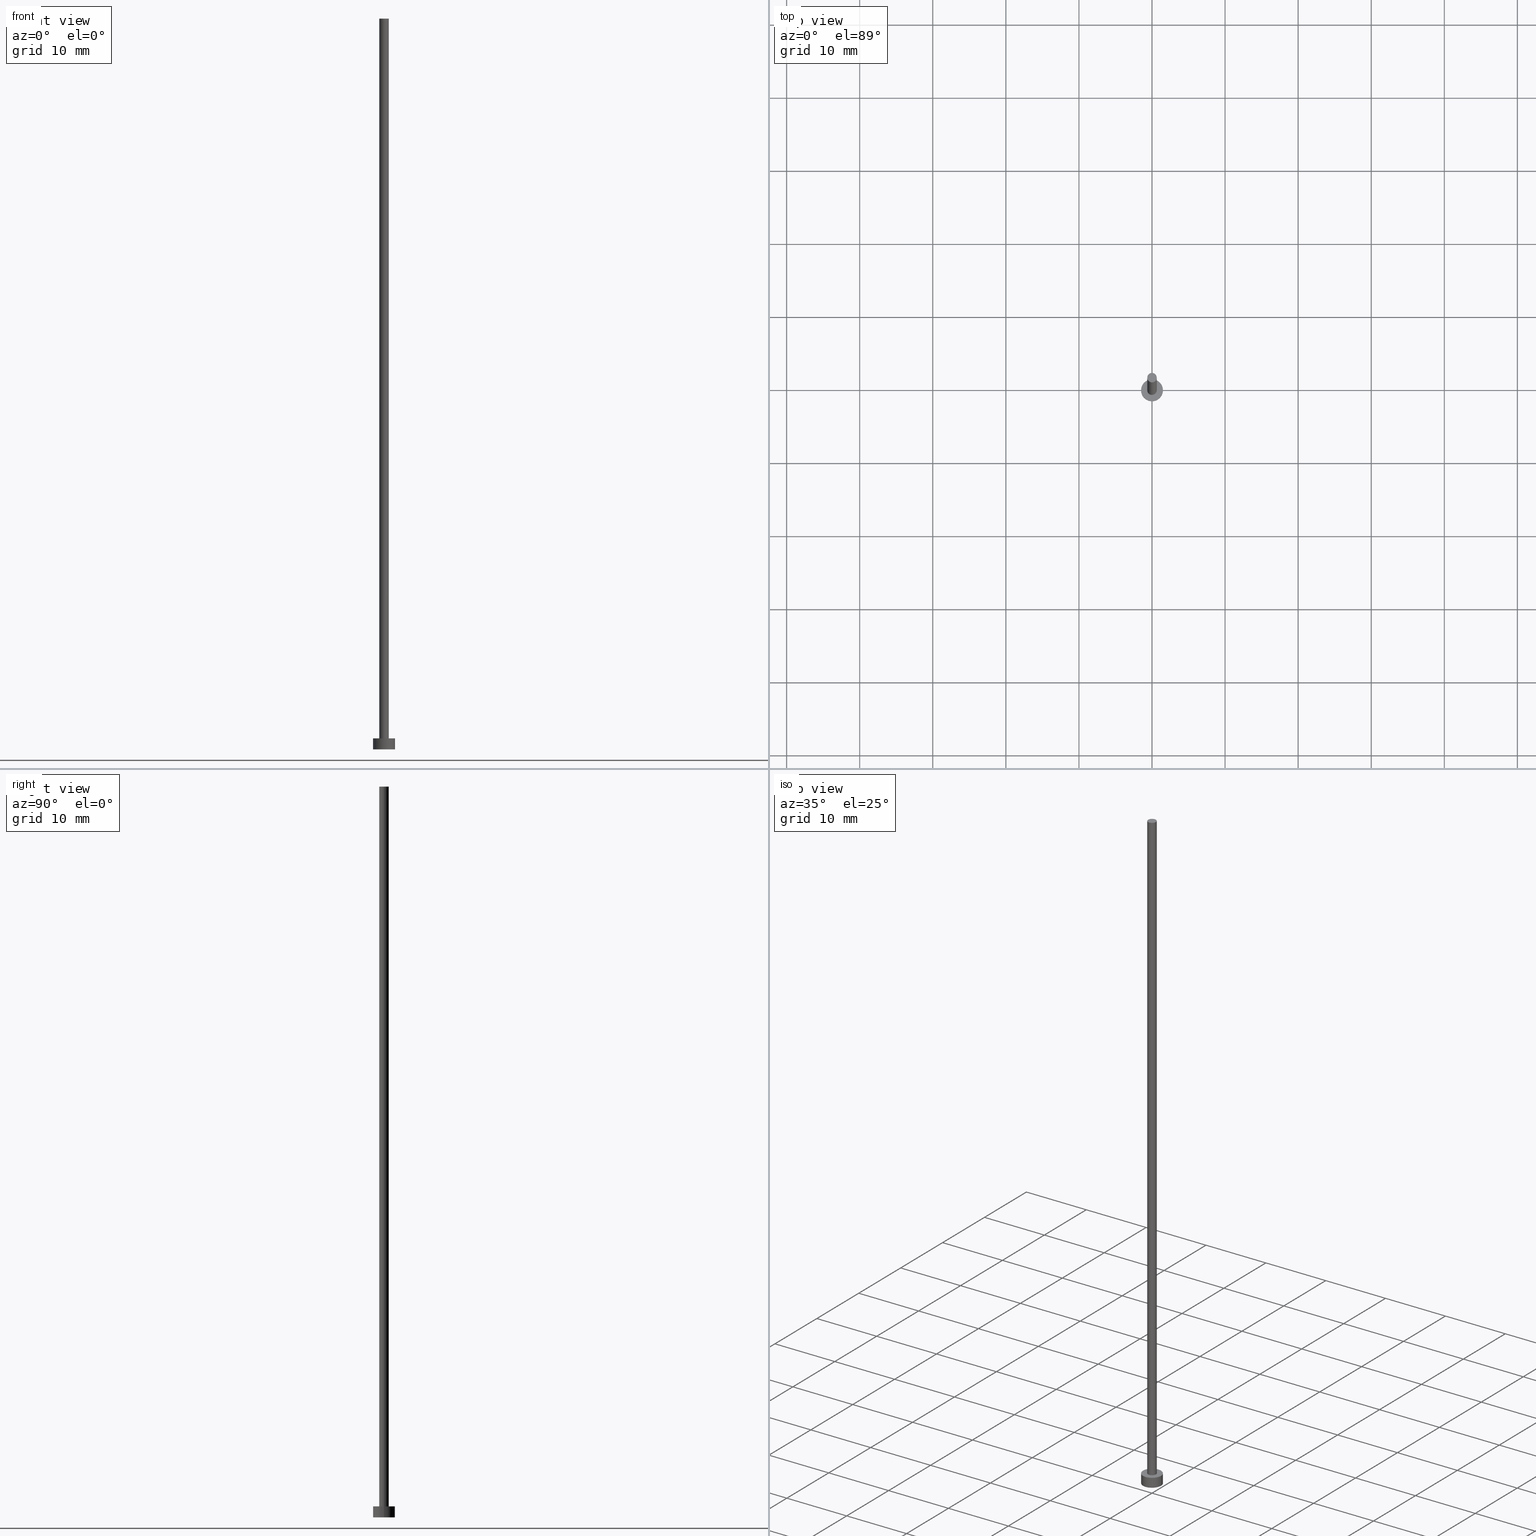
[diagram: canonical four-view strip — front | top / right | iso, engineering-drawing reading convention]
A machine part, canonical four-view strip (front | top / right | iso — engineering-drawing reading convention). The complete STEP part file that produces these views, byte-faithful:
ISO-10303-21;
HEADER;
FILE_DESCRIPTION (( 'STEP AP203' ),
    '1' );
FILE_NAME ('6736.STEP',
    '2023-02-13T17:26:36',
    ( '' ),
    ( '' ),
    'SwSTEP 2.0',
    'SolidWorks 2019',
    '' );
FILE_SCHEMA (( 'CONFIG_CONTROL_DESIGN' ));
ENDSEC;

DATA;
#1 = ORIENTED_EDGE ( 'NONE', *, *, #129, .T. ) ;
#2 = APPROVAL_ROLE ( '' ) ;
#3 = ORIENTED_EDGE ( 'NONE', *, *, #210, .T. ) ;
#4 = AXIS2_PLACEMENT_3D ( 'NONE', #92, #134, #136 ) ;
#5 = CC_DESIGN_PERSON_AND_ORGANIZATION_ASSIGNMENT ( #131, #34, ( #119 ) ) ;
#6 = CARTESIAN_POINT ( 'NONE',  ( 0.000000000000000000, 0.000000000000000000, 0.000000000000000000 ) ) ;
#7 = AXIS2_PLACEMENT_3D ( 'NONE', #14, #31, #175 ) ;
#8 = LOCAL_TIME ( 18, 26, 36.00000000000000000, #39 ) ;
#9 = CARTESIAN_POINT ( 'NONE',  ( 0.000000000000000000, 0.000000000000000000, 1.500000000000000000 ) ) ;
#10 = DIRECTION ( 'NONE',  ( 0.000000000000000000, 0.000000000000000000, 1.000000000000000000 ) ) ;
#11 = ORIENTED_EDGE ( 'NONE', *, *, #226, .T. ) ;
#12 = ORIENTED_EDGE ( 'NONE', *, *, #22, .T. ) ;
#13 = PRODUCT_RELATED_PRODUCT_CATEGORY ( 'detail', '', ( #119 ) ) ;
#14 = CARTESIAN_POINT ( 'NONE',  ( 0.000000000000000000, 0.000000000000000000, 100.0000000000000000 ) ) ;
#15 = DIRECTION ( 'NONE',  ( 0.000000000000000000, 0.000000000000000000, 1.000000000000000000 ) ) ;
#16 = CARTESIAN_POINT ( 'NONE',  ( -1.500000000000000222, 0.000000000000000000, 1.500000000000000000 ) ) ;
#17 = CYLINDRICAL_SURFACE ( 'NONE', #7, 0.6500000000000000222 ) ;
#18 = AXIS2_PLACEMENT_3D ( 'NONE', #9, #170, #146 ) ;
#19 = SHAPE_DEFINITION_REPRESENTATION ( #71, #50 ) ;
#20 = ORIENTED_EDGE ( 'NONE', *, *, #246, .F. ) ;
#21 = PERSON_AND_ORGANIZATION_ROLE ( 'classification_officer' ) ;
#22 = EDGE_CURVE ( 'NONE', #223, #99, #240, .T. ) ;
#23 = EDGE_LOOP ( 'NONE', ( #66, #89 ) ) ;
#24 = DIRECTION ( 'NONE',  ( -0.000000000000000000, -0.000000000000000000, -1.000000000000000000 ) ) ;
#25 = LOCAL_TIME ( 18, 26, 36.00000000000000000, #237 ) ;
#26 = FACE_BOUND ( 'NONE', #117, .T. ) ;
#27 = ADVANCED_FACE ( 'NONE', ( #101 ), #125, .T. ) ;
#28 = CARTESIAN_POINT ( 'NONE',  ( 0.000000000000000000, 0.000000000000000000, 1.500000000000000000 ) ) ;
#29 = LINE ( 'NONE', #105, #165 ) ;
#30 = AXIS2_PLACEMENT_3D ( 'NONE', #176, #90, #53 ) ;
#31 = DIRECTION ( 'NONE',  ( -0.000000000000000000, -0.000000000000000000, -1.000000000000000000 ) ) ;
#32 = ADVANCED_FACE ( 'NONE', ( #148 ), #201, .F. ) ;
#33 = DIRECTION ( 'NONE',  ( 1.000000000000000000, 0.000000000000000000, 0.000000000000000000 ) ) ;
#34 = PERSON_AND_ORGANIZATION_ROLE ( 'design_owner' ) ;
#35 = AXIS2_PLACEMENT_3D ( 'NONE', #107, #133, #33 ) ;
#36 = LINE ( 'NONE', #112, #187 ) ;
#37 = CIRCLE ( 'NONE', #144, 0.6500000000000000222 ) ;
#38 = DIRECTION ( 'NONE',  ( 1.000000000000000000, 0.000000000000000000, 0.000000000000000000 ) ) ;
#39 = COORDINATED_UNIVERSAL_TIME_OFFSET ( 1, 0, .AHEAD. ) ;
#40 = VERTEX_POINT ( 'NONE', #221 ) ;
#41 = PERSON_AND_ORGANIZATION_ROLE ( 'creator' ) ;
#42 = CARTESIAN_POINT ( 'NONE',  ( 0.6500000000000000222, 7.960204194457795477E-17, 100.0000000000000000 ) ) ;
#43 = DIRECTION ( 'NONE',  ( -0.000000000000000000, -0.000000000000000000, -1.000000000000000000 ) ) ;
#44 = ORIENTED_EDGE ( 'NONE', *, *, #210, .F. ) ;
#45 = AXIS2_PLACEMENT_3D ( 'NONE', #28, #104, #91 ) ;
#46 = CC_DESIGN_APPROVAL ( #219, ( #132 ) ) ;
#47 = CYLINDRICAL_SURFACE ( 'NONE', #18, 1.500000000000000222 ) ;
#48 = ORIENTED_EDGE ( 'NONE', *, *, #243, .T. ) ;
#49 = CC_DESIGN_APPROVAL ( #232, ( #127 ) ) ;
#50 = ADVANCED_BREP_SHAPE_REPRESENTATION ( '6736', ( #68, #30 ), #231 ) ;
#51 = DIRECTION ( 'NONE',  ( 1.000000000000000000, 0.000000000000000000, 0.000000000000000000 ) ) ;
#52 = UNCERTAINTY_MEASURE_WITH_UNIT (LENGTH_MEASURE( 1.000000000000000082E-05 ), #234, 'distance_accuracy_value', 'NONE');
#53 = DIRECTION ( 'NONE',  ( 1.000000000000000000, 0.000000000000000000, 0.000000000000000000 ) ) ;
#54 = CARTESIAN_POINT ( 'NONE',  ( 1.500000000000000222, 1.836970198721030181E-16, 0.000000000000000000 ) ) ;
#55 = CALENDAR_DATE ( 2023, 13, 2 ) ;
#56 = PERSON_AND_ORGANIZATION ( #251, #116 ) ;
#57 = VERTEX_POINT ( 'NONE', #42 ) ;
#58 = CC_DESIGN_SECURITY_CLASSIFICATION ( #127, ( #132 ) ) ;
#59 = DATE_TIME_ROLE ( 'classification_date' ) ;
#60 = PERSON_AND_ORGANIZATION ( #251, #116 ) ;
#61 = ORIENTED_EDGE ( 'NONE', *, *, #252, .F. ) ;
#62 = CARTESIAN_POINT ( 'NONE',  ( 0.000000000000000000, 0.000000000000000000, 1.500000000000000000 ) ) ;
#63 = DIRECTION ( 'NONE',  ( -1.000000000000000000, 0.000000000000000000, 0.000000000000000000 ) ) ;
#64 = DIRECTION ( 'NONE',  ( 1.000000000000000000, 0.000000000000000000, -0.000000000000000000 ) ) ;
#65 = AXIS2_PLACEMENT_3D ( 'NONE', #6, #227, #143 ) ;
#66 = ORIENTED_EDGE ( 'NONE', *, *, #109, .T. ) ;
#67 = DIRECTION ( 'NONE',  ( 0.000000000000000000, 0.000000000000000000, 1.000000000000000000 ) ) ;
#68 = MANIFOLD_SOLID_BREP ( 'P�idat vysunut�m3', #82 ) ;
#69 = CIRCLE ( 'NONE', #35, 0.6500000000000000222 ) ;
#70 = PERSON_AND_ORGANIZATION ( #251, #116 ) ;
#71 = PRODUCT_DEFINITION_SHAPE ( 'NONE', 'NONE',  #87 ) ;
#72 = FACE_OUTER_BOUND ( 'NONE', #248, .T. ) ;
#73 = PERSON_AND_ORGANIZATION ( #251, #116 ) ;
#74 = COORDINATED_UNIVERSAL_TIME_OFFSET ( 1, 0, .AHEAD. ) ;
#75 = DATE_AND_TIME ( #218, #182 ) ;
#76 = VERTEX_POINT ( 'NONE', #85 ) ;
#77 = CIRCLE ( 'NONE', #154, 0.6500000000000000222 ) ;
#78 = EDGE_LOOP ( 'NONE', ( #140, #245, #186, #197 ) ) ;
#79 = DATE_TIME_ROLE ( 'creation_date' ) ;
#80 = ORIENTED_EDGE ( 'NONE', *, *, #109, .F. ) ;
#81 = FACE_OUTER_BOUND ( 'NONE', #78, .T. ) ;
#82 = CLOSED_SHELL ( 'NONE', ( #27, #83, #135, #142, #32, #163, #202 ) ) ;
#83 = ADVANCED_FACE ( 'NONE', ( #81 ), #173, .T. ) ;
#84 = ORIENTED_EDGE ( 'NONE', *, *, #185, .T. ) ;
#85 = CARTESIAN_POINT ( 'NONE',  ( 1.500000000000000222, 1.836970198721030181E-16, 1.500000000000000000 ) ) ;
#86 = DIRECTION ( 'NONE',  ( 1.000000000000000000, 0.000000000000000000, 0.000000000000000000 ) ) ;
#87 = PRODUCT_DEFINITION ( 'NEZN�M�', '', #132, #110 ) ;
#88 = AXIS2_PLACEMENT_3D ( 'NONE', #169, #123, #63 ) ;
#89 = ORIENTED_EDGE ( 'NONE', *, *, #152, .T. ) ;
#90 = DIRECTION ( 'NONE',  ( 0.000000000000000000, 0.000000000000000000, 1.000000000000000000 ) ) ;
#91 = DIRECTION ( 'NONE',  ( 1.000000000000000000, 0.000000000000000000, 0.000000000000000000 ) ) ;
#92 = CARTESIAN_POINT ( 'NONE',  ( 0.000000000000000000, 0.000000000000000000, 100.0000000000000000 ) ) ;
#93 = PERSON_AND_ORGANIZATION ( #251, #116 ) ;
#94 = APPROVAL_ROLE ( '' ) ;
#95 = ORIENTED_EDGE ( 'NONE', *, *, #100, .F. ) ;
#96 = COORDINATED_UNIVERSAL_TIME_OFFSET ( 1, 0, .AHEAD. ) ;
#97 = AXIS2_PLACEMENT_3D ( 'NONE', #108, #229, #38 ) ;
#98 = ORIENTED_EDGE ( 'NONE', *, *, #185, .F. ) ;
#99 = VERTEX_POINT ( 'NONE', #225 ) ;
#100 = EDGE_CURVE ( 'NONE', #76, #222, #247, .T. ) ;
#101 = FACE_OUTER_BOUND ( 'NONE', #216, .T. ) ;
#102 = VECTOR ( 'NONE', #151, 1000.000000000000000 ) ;
#103 = FACE_OUTER_BOUND ( 'NONE', #23, .T. ) ;
#104 = DIRECTION ( 'NONE',  ( 0.000000000000000000, 0.000000000000000000, 1.000000000000000000 ) ) ;
#105 = CARTESIAN_POINT ( 'NONE',  ( 0.6500000000000000222, 7.960204194457795477E-17, 100.0000000000000000 ) ) ;
#106 = APPROVAL_PERSON_ORGANIZATION ( #70, #122, #160 ) ;
#107 = CARTESIAN_POINT ( 'NONE',  ( 0.000000000000000000, 0.000000000000000000, 1.500000000000000000 ) ) ;
#108 = CARTESIAN_POINT ( 'NONE',  ( 0.000000000000000000, 0.000000000000000000, 0.000000000000000000 ) ) ;
#109 = EDGE_CURVE ( 'NONE', #164, #76, #181, .T. ) ;
#110 = DESIGN_CONTEXT ( 'detailed design', #147, 'design' ) ;
#111 = AXIS2_PLACEMENT_3D ( 'NONE', #172, #205, #206 ) ;
#112 = CARTESIAN_POINT ( 'NONE',  ( -0.6500000000000000222, 0.000000000000000000, 100.0000000000000000 ) ) ;
#113 = DIRECTION ( 'NONE',  ( 1.000000000000000000, 0.000000000000000000, 0.000000000000000000 ) ) ;
#114 = PERSON_AND_ORGANIZATION_ROLE ( 'design_supplier' ) ;
#115 = DATE_AND_TIME ( #121, #8 ) ;
#116 = ORGANIZATION ( 'NEUR�EN�', 'NEUR�EN�', '' ) ;
#117 = EDGE_LOOP ( 'NONE', ( #190, #44 ) ) ;
#118 = CC_DESIGN_PERSON_AND_ORGANIZATION_ASSIGNMENT ( #73, #21, ( #127 ) ) ;
#119 = PRODUCT ( '6736', '6736', '', ( #228 ) ) ;
#120 = VERTEX_POINT ( 'NONE', #124 ) ;
#121 = CALENDAR_DATE ( 2023, 13, 2 ) ;
#122 = APPROVAL ( #233, 'NEUR�EN�' ) ;
#123 = DIRECTION ( 'NONE',  ( -0.000000000000000000, -0.000000000000000000, -1.000000000000000000 ) ) ;
#124 = CARTESIAN_POINT ( 'NONE',  ( -1.500000000000000222, 0.000000000000000000, 0.000000000000000000 ) ) ;
#125 = CYLINDRICAL_SURFACE ( 'NONE', #111, 0.6500000000000000222 ) ;
#126 = AXIS2_PLACEMENT_3D ( 'NONE', #200, #128, #86 ) ;
#127 = SECURITY_CLASSIFICATION ( '', '', #220 ) ;
#128 = DIRECTION ( 'NONE',  ( 0.000000000000000000, 0.000000000000000000, 1.000000000000000000 ) ) ;
#129 = EDGE_CURVE ( 'NONE', #57, #99, #29, .T. ) ;
#130 = DIRECTION ( 'NONE',  ( 0.000000000000000000, 0.000000000000000000, 1.000000000000000000 ) ) ;
#131 = PERSON_AND_ORGANIZATION ( #251, #116 ) ;
#132 = PRODUCT_DEFINITION_FORMATION_WITH_SPECIFIED_SOURCE ( 'LIBOVOLN�', '', #119, .NOT_KNOWN. ) ;
#133 = DIRECTION ( 'NONE',  ( 0.000000000000000000, 0.000000000000000000, 1.000000000000000000 ) ) ;
#134 = DIRECTION ( 'NONE',  ( 0.000000000000000000, 0.000000000000000000, 1.000000000000000000 ) ) ;
#135 = ADVANCED_FACE ( 'NONE', ( #188 ), #47, .T. ) ;
#136 = DIRECTION ( 'NONE',  ( 1.000000000000000000, 0.000000000000000000, -0.000000000000000000 ) ) ;
#137 = APPROVAL_STATUS ( 'not_yet_approved' ) ;
#138 = ORIENTED_EDGE ( 'NONE', *, *, #171, .F. ) ;
#139 = PERSON_AND_ORGANIZATION_ROLE ( 'creator' ) ;
#140 = ORIENTED_EDGE ( 'NONE', *, *, #152, .F. ) ;
#141 = PERSON_AND_ORGANIZATION ( #251, #116 ) ;
#142 = ADVANCED_FACE ( 'NONE', ( #26, #103 ), #189, .T. ) ;
#143 = DIRECTION ( 'NONE',  ( 1.000000000000000000, 0.000000000000000000, -0.000000000000000000 ) ) ;
#144 = AXIS2_PLACEMENT_3D ( 'NONE', #158, #15, #113 ) ;
#145 = DIRECTION ( 'NONE',  ( 1.000000000000000000, 0.000000000000000000, 0.000000000000000000 ) ) ;
#146 = DIRECTION ( 'NONE',  ( -1.000000000000000000, 0.000000000000000000, 0.000000000000000000 ) ) ;
#147 = APPLICATION_CONTEXT ( 'configuration controlled 3d designs of mechanical parts and assemblies' ) ;
#148 = FACE_OUTER_BOUND ( 'NONE', #191, .T. ) ;
#149 = CC_DESIGN_PERSON_AND_ORGANIZATION_ASSIGNMENT ( #60, #41, ( #87 ) ) ;
#150 = ORIENTED_EDGE ( 'NONE', *, *, #243, .F. ) ;
#151 = DIRECTION ( 'NONE',  ( -0.000000000000000000, -0.000000000000000000, -1.000000000000000000 ) ) ;
#152 = EDGE_CURVE ( 'NONE', #76, #164, #230, .T. ) ;
#153 = DIRECTION ( 'NONE',  ( 0.000000000000000000, 0.000000000000000000, 1.000000000000000000 ) ) ;
#154 = AXIS2_PLACEMENT_3D ( 'NONE', #157, #67, #51 ) ;
#155 = LOCAL_TIME ( 18, 26, 36.00000000000000000, #74 ) ;
#156 = PLANE ( 'NONE',  #4 ) ;
#157 = CARTESIAN_POINT ( 'NONE',  ( 0.000000000000000000, 0.000000000000000000, 100.0000000000000000 ) ) ;
#158 = CARTESIAN_POINT ( 'NONE',  ( 0.000000000000000000, 0.000000000000000000, 100.0000000000000000 ) ) ;
#159 = CALENDAR_DATE ( 2023, 13, 2 ) ;
#160 = APPROVAL_ROLE ( '' ) ;
#161 = ORIENTED_EDGE ( 'NONE', *, *, #252, .T. ) ;
#162 = DATE_AND_TIME ( #159, #166 ) ;
#163 = ADVANCED_FACE ( 'NONE', ( #72 ), #17, .T. ) ;
#164 = VERTEX_POINT ( 'NONE', #254 ) ;
#165 = VECTOR ( 'NONE', #24, 1000.000000000000000 ) ;
#166 = LOCAL_TIME ( 18, 26, 36.00000000000000000, #96 ) ;
#167 = CC_DESIGN_PERSON_AND_ORGANIZATION_ASSIGNMENT ( #56, #139, ( #132 ) ) ;
#168 = AXIS2_PLACEMENT_3D ( 'NONE', #249, #10, #64 ) ;
#169 = CARTESIAN_POINT ( 'NONE',  ( 0.000000000000000000, 0.000000000000000000, 1.500000000000000000 ) ) ;
#170 = DIRECTION ( 'NONE',  ( -0.000000000000000000, -0.000000000000000000, -1.000000000000000000 ) ) ;
#171 = EDGE_CURVE ( 'NONE', #57, #40, #77, .T. ) ;
#172 = CARTESIAN_POINT ( 'NONE',  ( 0.000000000000000000, 0.000000000000000000, 100.0000000000000000 ) ) ;
#173 = CYLINDRICAL_SURFACE ( 'NONE', #88, 1.500000000000000222 ) ;
#174 = VECTOR ( 'NONE', #43, 1000.000000000000000 ) ;
#175 = DIRECTION ( 'NONE',  ( -1.000000000000000000, 0.000000000000000000, 0.000000000000000000 ) ) ;
#176 = CARTESIAN_POINT ( 'NONE',  ( 0.000000000000000000, 0.000000000000000000, 0.000000000000000000 ) ) ;
#177 = APPROVAL_PERSON_ORGANIZATION ( #93, #232, #94 ) ;
#178 =( NAMED_UNIT ( * ) PLANE_ANGLE_UNIT ( ) SI_UNIT ( $, .RADIAN. ) );
#179 = CARTESIAN_POINT ( 'NONE',  ( 0.000000000000000000, 0.000000000000000000, 0.000000000000000000 ) ) ;
#180 = APPROVAL_DATE_TIME ( #214, #232 ) ;
#181 = CIRCLE ( 'NONE', #235, 1.500000000000000222 ) ;
#182 = LOCAL_TIME ( 18, 26, 36.00000000000000000, #255 ) ;
#183 = APPROVAL_DATE_TIME ( #75, #122 ) ;
#184 = AXIS2_PLACEMENT_3D ( 'NONE', #179, #153, #207 ) ;
#185 = EDGE_CURVE ( 'NONE', #40, #223, #36, .T. ) ;
#186 = ORIENTED_EDGE ( 'NONE', *, *, #246, .T. ) ;
#187 = VECTOR ( 'NONE', #208, 1000.000000000000000 ) ;
#188 = FACE_OUTER_BOUND ( 'NONE', #198, .T. ) ;
#189 = PLANE ( 'NONE',  #168 ) ;
#190 = ORIENTED_EDGE ( 'NONE', *, *, #22, .F. ) ;
#191 = EDGE_LOOP ( 'NONE', ( #150, #20 ) ) ;
#192 = CC_DESIGN_PERSON_AND_ORGANIZATION_ASSIGNMENT ( #199, #114, ( #132 ) ) ;
#193 = APPLICATION_PROTOCOL_DEFINITION ( 'international standard', 'config_control_design', 1994, #147 ) ;
#194 = FACE_OUTER_BOUND ( 'NONE', #217, .T. ) ;
#195 = LINE ( 'NONE', #16, #102 ) ;
#196 = CALENDAR_DATE ( 2023, 13, 2 ) ;
#197 = ORIENTED_EDGE ( 'NONE', *, *, #226, .F. ) ;
#198 = EDGE_LOOP ( 'NONE', ( #95, #80, #11, #48 ) ) ;
#199 = PERSON_AND_ORGANIZATION ( #251, #116 ) ;
#200 = CARTESIAN_POINT ( 'NONE',  ( 0.000000000000000000, 0.000000000000000000, 1.500000000000000000 ) ) ;
#201 = PLANE ( 'NONE',  #65 ) ;
#202 = ADVANCED_FACE ( 'NONE', ( #194 ), #156, .T. ) ;
#203 = APPROVAL_PERSON_ORGANIZATION ( #141, #219, #2 ) ;
#204 = ORIENTED_EDGE ( 'NONE', *, *, #129, .F. ) ;
#205 = DIRECTION ( 'NONE',  ( -0.000000000000000000, -0.000000000000000000, -1.000000000000000000 ) ) ;
#206 = DIRECTION ( 'NONE',  ( -1.000000000000000000, 0.000000000000000000, 0.000000000000000000 ) ) ;
#207 = DIRECTION ( 'NONE',  ( 1.000000000000000000, 0.000000000000000000, 0.000000000000000000 ) ) ;
#208 = DIRECTION ( 'NONE',  ( -0.000000000000000000, -0.000000000000000000, -1.000000000000000000 ) ) ;
#209 =( NAMED_UNIT ( * ) SI_UNIT ( $, .STERADIAN. ) SOLID_ANGLE_UNIT ( ) );
#210 = EDGE_CURVE ( 'NONE', #99, #223, #69, .T. ) ;
#211 = APPLICATION_CONTEXT ( 'configuration controlled 3d designs of mechanical parts and assemblies' ) ;
#212 = CIRCLE ( 'NONE', #97, 1.500000000000000222 ) ;
#213 = CARTESIAN_POINT ( 'NONE',  ( -0.6500000000000000222, 0.000000000000000000, 1.500000000000000000 ) ) ;
#214 = DATE_AND_TIME ( #196, #155 ) ;
#215 = CC_DESIGN_DATE_AND_TIME_ASSIGNMENT ( #242, #59, ( #127 ) ) ;
#216 = EDGE_LOOP ( 'NONE', ( #138, #1, #3, #98 ) ) ;
#217 = EDGE_LOOP ( 'NONE', ( #161, #239 ) ) ;
#218 = CALENDAR_DATE ( 2023, 13, 2 ) ;
#219 = APPROVAL ( #244, 'NEUR�EN�' ) ;
#220 = SECURITY_CLASSIFICATION_LEVEL ( 'unclassified' ) ;
#221 = CARTESIAN_POINT ( 'NONE',  ( -0.6500000000000000222, 0.000000000000000000, 100.0000000000000000 ) ) ;
#222 = VERTEX_POINT ( 'NONE', #54 ) ;
#223 = VERTEX_POINT ( 'NONE', #213 ) ;
#224 = CIRCLE ( 'NONE', #184, 1.500000000000000222 ) ;
#225 = CARTESIAN_POINT ( 'NONE',  ( 0.6500000000000000222, 7.960204194457795477E-17, 1.500000000000000000 ) ) ;
#226 = EDGE_CURVE ( 'NONE', #164, #120, #195, .T. ) ;
#227 = DIRECTION ( 'NONE',  ( 0.000000000000000000, 0.000000000000000000, 1.000000000000000000 ) ) ;
#228 = MECHANICAL_CONTEXT ( 'NONE', #211, 'mechanical' ) ;
#229 = DIRECTION ( 'NONE',  ( 0.000000000000000000, 0.000000000000000000, 1.000000000000000000 ) ) ;
#230 = CIRCLE ( 'NONE', #45, 1.500000000000000222 ) ;
#231 =( GEOMETRIC_REPRESENTATION_CONTEXT ( 3 ) GLOBAL_UNCERTAINTY_ASSIGNED_CONTEXT ( ( #52 ) ) GLOBAL_UNIT_ASSIGNED_CONTEXT ( ( #234, #178, #209 ) ) REPRESENTATION_CONTEXT ( 'NONE', 'WORKASPACE' ) );
#232 = APPROVAL ( #137, 'NEUR�EN�' ) ;
#233 = APPROVAL_STATUS ( 'not_yet_approved' ) ;
#234 =( LENGTH_UNIT ( ) NAMED_UNIT ( * ) SI_UNIT ( .MILLI., .METRE. ) );
#235 = AXIS2_PLACEMENT_3D ( 'NONE', #62, #130, #145 ) ;
#236 = CC_DESIGN_DATE_AND_TIME_ASSIGNMENT ( #162, #79, ( #87 ) ) ;
#237 = COORDINATED_UNIVERSAL_TIME_OFFSET ( 1, 0, .AHEAD. ) ;
#238 = APPROVAL_DATE_TIME ( #115, #219 ) ;
#239 = ORIENTED_EDGE ( 'NONE', *, *, #171, .T. ) ;
#240 = CIRCLE ( 'NONE', #126, 0.6500000000000000222 ) ;
#241 = CC_DESIGN_APPROVAL ( #122, ( #87 ) ) ;
#242 = DATE_AND_TIME ( #55, #25 ) ;
#243 = EDGE_CURVE ( 'NONE', #120, #222, #224, .T. ) ;
#244 = APPROVAL_STATUS ( 'not_yet_approved' ) ;
#245 = ORIENTED_EDGE ( 'NONE', *, *, #100, .T. ) ;
#246 = EDGE_CURVE ( 'NONE', #222, #120, #212, .T. ) ;
#247 = LINE ( 'NONE', #250, #174 ) ;
#248 = EDGE_LOOP ( 'NONE', ( #204, #61, #84, #12 ) ) ;
#249 = CARTESIAN_POINT ( 'NONE',  ( 0.000000000000000000, 0.000000000000000000, 1.500000000000000000 ) ) ;
#250 = CARTESIAN_POINT ( 'NONE',  ( 1.500000000000000222, 1.836970198721030181E-16, 1.500000000000000000 ) ) ;
#251 = PERSON ( 'NEUR�EN�', 'NEUR�EN�', 'NEUR�EN�', ('NEUR�EN�'), ('NEUR�EN�'), ('NEUR�EN�') ) ;
#252 = EDGE_CURVE ( 'NONE', #40, #57, #37, .T. ) ;
#253 = APPLICATION_PROTOCOL_DEFINITION ( 'international standard', 'config_control_design', 1994, #211 ) ;
#254 = CARTESIAN_POINT ( 'NONE',  ( -1.500000000000000222, 0.000000000000000000, 1.500000000000000000 ) ) ;
#255 = COORDINATED_UNIVERSAL_TIME_OFFSET ( 1, 0, .AHEAD. ) ;
ENDSEC;
END-ISO-10303-21;
